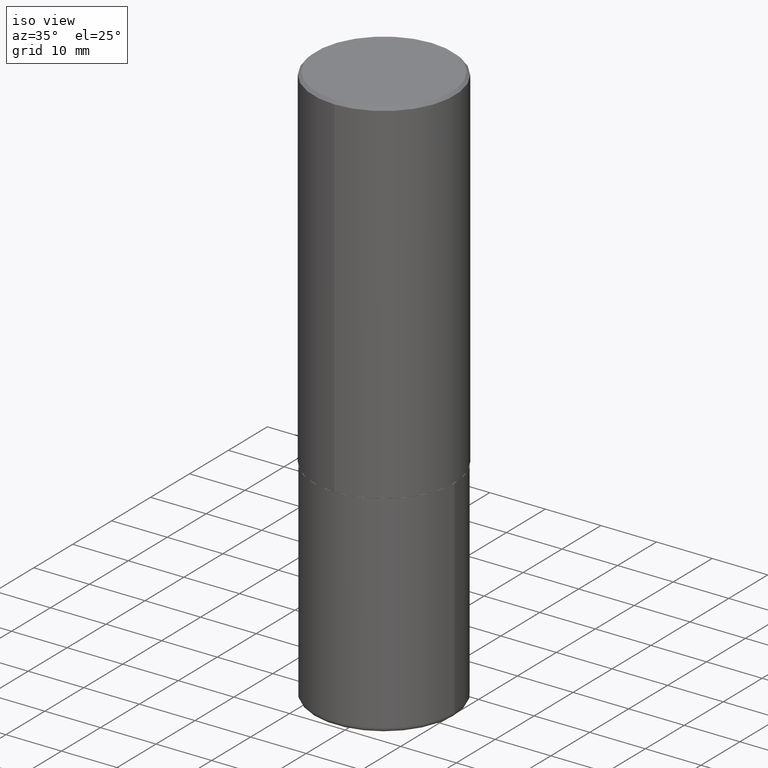
[diagram: clean part render]
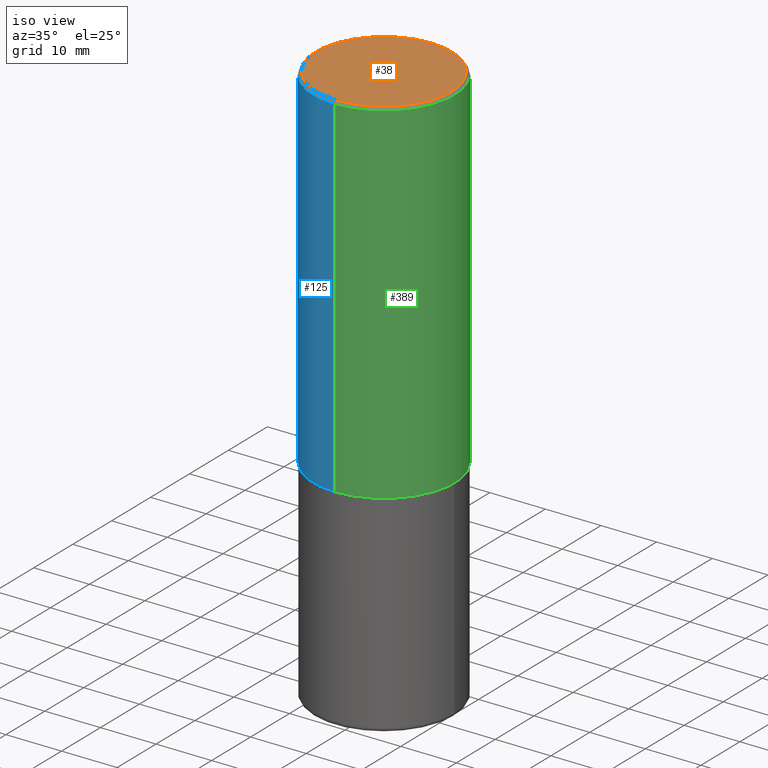
[diagram: same view with three faces highlighted in distinct colors, each labeled with its STEP entity id]
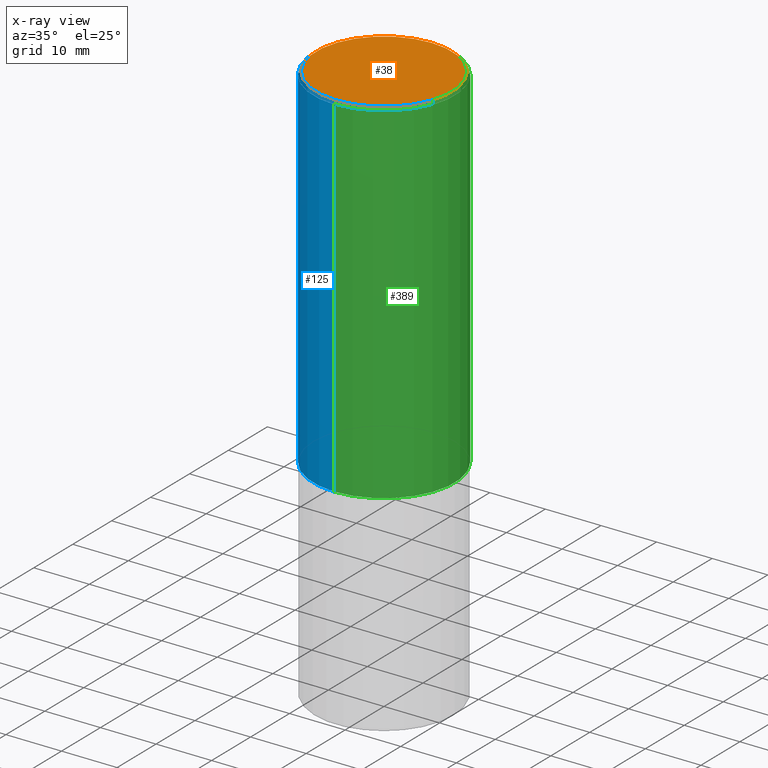
[diagram: x-ray of the same camera — body ghosted, the three highlighted faces saturated]
A machine part, iso view with three faces highlighted in distinct colors.
The next image is the same camera in x-ray (body ghosted, the three faces saturated) — at least one of them is partly hidden behind the body in this view.
Their STEP definitions:

[orange] entity #38 — the highlighted planar face has unit normal (0, -0, -1).
#9 = EDGE_CURVE ( 'NONE', #100, #22, #203, .T. ) ;
#22 = VERTEX_POINT ( 'NONE', #95 ) ;
#38 = ADVANCED_FACE ( 'NONE', ( #387 ), #260, .F. ) ;
#95 = CARTESIAN_POINT ( 'NONE',  ( -3.361644018908049661E-15, -0.4799999999999998157, 1.902860714379959855E-15 ) ) ;
#100 = VERTEX_POINT ( 'NONE', #384 ) ;
#112 = EDGE_LOOP ( 'NONE', ( #232, #307 ) ) ;
#141 = DIRECTION ( 'NONE',  ( -6.982962677686265922E-15, -1.000000000000000000, 3.492229786509738161E-15 ) ) ;
#157 = DIRECTION ( 'NONE',  ( 2.444946167972934647E-29, -3.492229786509738161E-15, -1.000000000000000000 ) ) ;
#166 = CIRCLE ( 'NONE', #212, 0.4799999999999998157 ) ;
#197 = AXIS2_PLACEMENT_3D ( 'NONE', #374, #340, #313 ) ;
#203 = CIRCLE ( 'NONE', #197, 0.4799999999999998157 ) ;
#211 = AXIS2_PLACEMENT_3D ( 'NONE', #226, #157, #290 ) ;
#212 = AXIS2_PLACEMENT_3D ( 'NONE', #302, #249, #141 ) ;
#226 = CARTESIAN_POINT ( 'NONE',  ( 3.351822085289406364E-15, 0.4799999999999998157, -1.562975089097030468E-15 ) ) ;
#232 = ORIENTED_EDGE ( 'NONE', *, *, #9, .T. ) ;
#246 = EDGE_CURVE ( 'NONE', #22, #100, #166, .T. ) ;
#249 = DIRECTION ( 'NONE',  ( -2.444946167972934928E-29, 3.492229786509738161E-15, 1.000000000000000000 ) ) ;
#260 = PLANE ( 'NONE',  #211 ) ;
#290 = DIRECTION ( 'NONE',  ( 6.982962677686265922E-15, 1.000000000000000000, -3.492229786509738161E-15 ) ) ;
#302 = CARTESIAN_POINT ( 'NONE',  ( -5.540013713897219376E-45, 7.913058030796886371E-31, 2.265904168552862416E-16 ) ) ;
#307 = ORIENTED_EDGE ( 'NONE', *, *, #246, .T. ) ;
#313 = DIRECTION ( 'NONE',  ( -6.982962677686265922E-15, -1.000000000000000000, 3.492229786509738161E-15 ) ) ;
#340 = DIRECTION ( 'NONE',  ( -2.444946167972934928E-29, 3.492229786509738161E-15, 1.000000000000000000 ) ) ;
#374 = CARTESIAN_POINT ( 'NONE',  ( -5.540013713897219376E-45, 7.913058030796886371E-31, 2.265904168552862416E-16 ) ) ;
#384 = CARTESIAN_POINT ( 'NONE',  ( 3.421651712066270057E-15, 0.4799999999999998157, -1.449679880669387470E-15 ) ) ;
#387 = FACE_OUTER_BOUND ( 'NONE', #112, .T. ) ;

[blue] entity #125 — the highlighted cylindrical surface (partial cylindrical patch) has radius 12.7 mm, axis along (-0, 0, 1).
#16 = ORIENTED_EDGE ( 'NONE', *, *, #94, .T. ) ;
#20 = CARTESIAN_POINT ( 'NONE',  ( 3.552713678800533273E-15, 0.4999999999999916178, -2.499000000000001886 ) ) ;
#24 = AXIS2_PLACEMENT_3D ( 'NONE', #224, #352, #119 ) ;
#26 = CARTESIAN_POINT ( 'NONE',  ( 3.491481338843133355E-15, 0.4999999999999999445, -0.02000000000000185310 ) ) ;
#32 = EDGE_CURVE ( 'NONE', #368, #84, #220, .T. ) ;
#37 = AXIS2_PLACEMENT_3D ( 'NONE', #58, #83, #201 ) ;
#58 = CARTESIAN_POINT ( 'NONE',  ( 0.000000000000000000, 0.000000000000000000, 0.000000000000000000 ) ) ;
#74 = CYLINDRICAL_SURFACE ( 'NONE', #37, 0.5000000000000001110 ) ;
#78 = VECTOR ( 'NONE', #255, 39.37007874015748143 ) ;
#83 = DIRECTION ( 'NONE',  ( -2.444946167972934928E-29, 3.492229786509738161E-15, 1.000000000000000000 ) ) ;
#84 = VERTEX_POINT ( 'NONE', #153 ) ;
#93 = CARTESIAN_POINT ( 'NONE',  ( 6.109920473764365540E-29, -8.727082236487837614E-15, -2.499000000000000110 ) ) ;
#94 = EDGE_CURVE ( 'NONE', #160, #84, #415, .T. ) ;
#104 = AXIS2_PLACEMENT_3D ( 'NONE', #93, #412, #124 ) ;
#115 = DIRECTION ( 'NONE',  ( -2.444946167972934928E-29, 3.492229786509738161E-15, 1.000000000000000000 ) ) ;
#119 = DIRECTION ( 'NONE',  ( -6.982962677686265922E-15, -1.000000000000000000, 3.491643216902136408E-15 ) ) ;
#122 = CARTESIAN_POINT ( 'NONE',  ( -3.491481338843133750E-15, -0.5000000000000001110, 1.746114893254869475E-15 ) ) ;
#123 = EDGE_CURVE ( 'NONE', #174, #368, #204, .T. ) ;
#124 = DIRECTION ( 'NONE',  ( -6.982962677686266711E-15, -1.000000000000000000, 3.278217592397114284E-15 ) ) ;
#125 = ADVANCED_FACE ( 'NONE', ( #376 ), #74, .T. ) ;
#144 = ORIENTED_EDGE ( 'NONE', *, *, #32, .F. ) ;
#153 = CARTESIAN_POINT ( 'NONE',  ( -3.430248998885764992E-15, -0.5000000000000001110, -0.01999999999999835937 ) ) ;
#160 = VERTEX_POINT ( 'NONE', #282 ) ;
#174 = VERTEX_POINT ( 'NONE', #20 ) ;
#201 = DIRECTION ( 'NONE',  ( -6.982962677686265922E-15, -1.000000000000000000, 3.492229786509738161E-15 ) ) ;
#204 = LINE ( 'NONE', #367, #365 ) ;
#220 = CIRCLE ( 'NONE', #24, 0.5000000000000000000 ) ;
#224 = CARTESIAN_POINT ( 'NONE',  ( 4.889892335945895815E-31, -6.984459573019513448E-17, -0.02000000000000010797 ) ) ;
#255 = DIRECTION ( 'NONE',  ( -2.444946167972934928E-29, 3.492229786509738161E-15, 1.000000000000000000 ) ) ;
#282 = CARTESIAN_POINT ( 'NONE',  ( -3.491481338843073796E-15, -0.5000000000000089928, -2.498999999999998778 ) ) ;
#330 = EDGE_LOOP ( 'NONE', ( #402, #336, #16, #144 ) ) ;
#336 = ORIENTED_EDGE ( 'NONE', *, *, #354, .T. ) ;
#344 = CIRCLE ( 'NONE', #104, 0.5000000000000002220 ) ;
#352 = DIRECTION ( 'NONE',  ( -2.444946167972934928E-29, 3.492229786509738161E-15, 1.000000000000000000 ) ) ;
#354 = EDGE_CURVE ( 'NONE', #174, #160, #344, .T. ) ;
#365 = VECTOR ( 'NONE', #115, 39.37007874015748143 ) ;
#367 = CARTESIAN_POINT ( 'NONE',  ( 3.552713678800501718E-15, 0.5000000000000001110, -1.746114893254869475E-15 ) ) ;
#368 = VERTEX_POINT ( 'NONE', #26 ) ;
#376 = FACE_OUTER_BOUND ( 'NONE', #330, .T. ) ;
#402 = ORIENTED_EDGE ( 'NONE', *, *, #123, .F. ) ;
#412 = DIRECTION ( 'NONE',  ( -2.444946167972934928E-29, 3.492229786509738161E-15, 1.000000000000000000 ) ) ;
#415 = LINE ( 'NONE', #122, #78 ) ;

[green] entity #389 — the highlighted cylindrical surface (partial cylindrical patch) has radius 12.7 mm, axis along (-0, 0, 1).
#1 = AXIS2_PLACEMENT_3D ( 'NONE', #158, #293, #219 ) ;
#14 = ORIENTED_EDGE ( 'NONE', *, *, #18, .F. ) ;
#18 = EDGE_CURVE ( 'NONE', #84, #368, #91, .T. ) ;
#20 = CARTESIAN_POINT ( 'NONE',  ( 3.552713678800533273E-15, 0.4999999999999916178, -2.499000000000001886 ) ) ;
#26 = CARTESIAN_POINT ( 'NONE',  ( 3.491481338843133355E-15, 0.4999999999999999445, -0.02000000000000185310 ) ) ;
#27 = EDGE_CURVE ( 'NONE', #160, #174, #327, .T. ) ;
#29 = DIRECTION ( 'NONE',  ( -2.444946167972934928E-29, 3.492229786509738161E-15, 1.000000000000000000 ) ) ;
#40 = ORIENTED_EDGE ( 'NONE', *, *, #123, .T. ) ;
#78 = VECTOR ( 'NONE', #255, 39.37007874015748143 ) ;
#81 = CARTESIAN_POINT ( 'NONE',  ( 4.889892335945895815E-31, -6.984459573019513448E-17, -0.02000000000000010797 ) ) ;
#84 = VERTEX_POINT ( 'NONE', #153 ) ;
#91 = CIRCLE ( 'NONE', #407, 0.5000000000000000000 ) ;
#94 = EDGE_CURVE ( 'NONE', #160, #84, #415, .T. ) ;
#115 = DIRECTION ( 'NONE',  ( -2.444946167972934928E-29, 3.492229786509738161E-15, 1.000000000000000000 ) ) ;
#118 = CYLINDRICAL_SURFACE ( 'NONE', #279, 0.5000000000000001110 ) ;
#122 = CARTESIAN_POINT ( 'NONE',  ( -3.491481338843133750E-15, -0.5000000000000001110, 1.746114893254869475E-15 ) ) ;
#123 = EDGE_CURVE ( 'NONE', #174, #368, #204, .T. ) ;
#153 = CARTESIAN_POINT ( 'NONE',  ( -3.430248998885764992E-15, -0.5000000000000001110, -0.01999999999999835937 ) ) ;
#158 = CARTESIAN_POINT ( 'NONE',  ( 6.109920473764365540E-29, -8.727082236487837614E-15, -2.499000000000000110 ) ) ;
#160 = VERTEX_POINT ( 'NONE', #282 ) ;
#172 = EDGE_LOOP ( 'NONE', ( #265, #40, #14, #202 ) ) ;
#174 = VERTEX_POINT ( 'NONE', #20 ) ;
#186 = FACE_OUTER_BOUND ( 'NONE', #172, .T. ) ;
#202 = ORIENTED_EDGE ( 'NONE', *, *, #94, .F. ) ;
#204 = LINE ( 'NONE', #367, #365 ) ;
#214 = DIRECTION ( 'NONE',  ( -6.982962677686265922E-15, -1.000000000000000000, 3.492229786509738161E-15 ) ) ;
#219 = DIRECTION ( 'NONE',  ( -6.982962677686266711E-15, -1.000000000000000000, 3.278217592397114284E-15 ) ) ;
#255 = DIRECTION ( 'NONE',  ( -2.444946167972934928E-29, 3.492229786509738161E-15, 1.000000000000000000 ) ) ;
#258 = DIRECTION ( 'NONE',  ( -2.444946167972934928E-29, 3.492229786509738161E-15, 1.000000000000000000 ) ) ;
#265 = ORIENTED_EDGE ( 'NONE', *, *, #27, .T. ) ;
#279 = AXIS2_PLACEMENT_3D ( 'NONE', #286, #29, #214 ) ;
#282 = CARTESIAN_POINT ( 'NONE',  ( -3.491481338843073796E-15, -0.5000000000000089928, -2.498999999999998778 ) ) ;
#286 = CARTESIAN_POINT ( 'NONE',  ( 0.000000000000000000, 0.000000000000000000, 0.000000000000000000 ) ) ;
#293 = DIRECTION ( 'NONE',  ( -2.444946167972934928E-29, 3.492229786509738161E-15, 1.000000000000000000 ) ) ;
#327 = CIRCLE ( 'NONE', #1, 0.5000000000000002220 ) ;
#365 = VECTOR ( 'NONE', #115, 39.37007874015748143 ) ;
#367 = CARTESIAN_POINT ( 'NONE',  ( 3.552713678800501718E-15, 0.5000000000000001110, -1.746114893254869475E-15 ) ) ;
#368 = VERTEX_POINT ( 'NONE', #26 ) ;
#389 = ADVANCED_FACE ( 'NONE', ( #186 ), #118, .T. ) ;
#407 = AXIS2_PLACEMENT_3D ( 'NONE', #81, #258, #418 ) ;
#415 = LINE ( 'NONE', #122, #78 ) ;
#418 = DIRECTION ( 'NONE',  ( -6.982962677686265922E-15, -1.000000000000000000, 3.491643216902136408E-15 ) ) ;